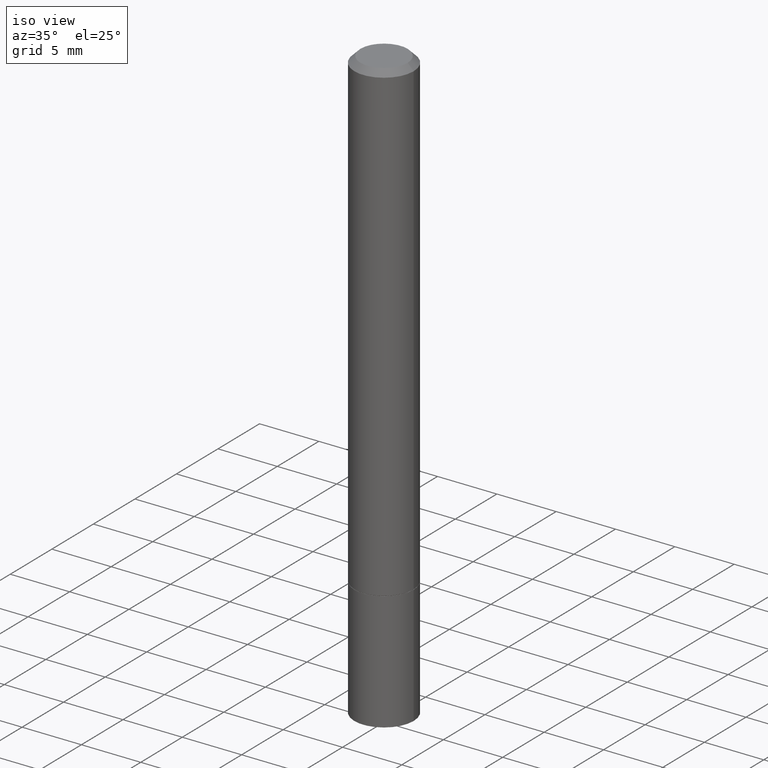
[diagram: clean part render]
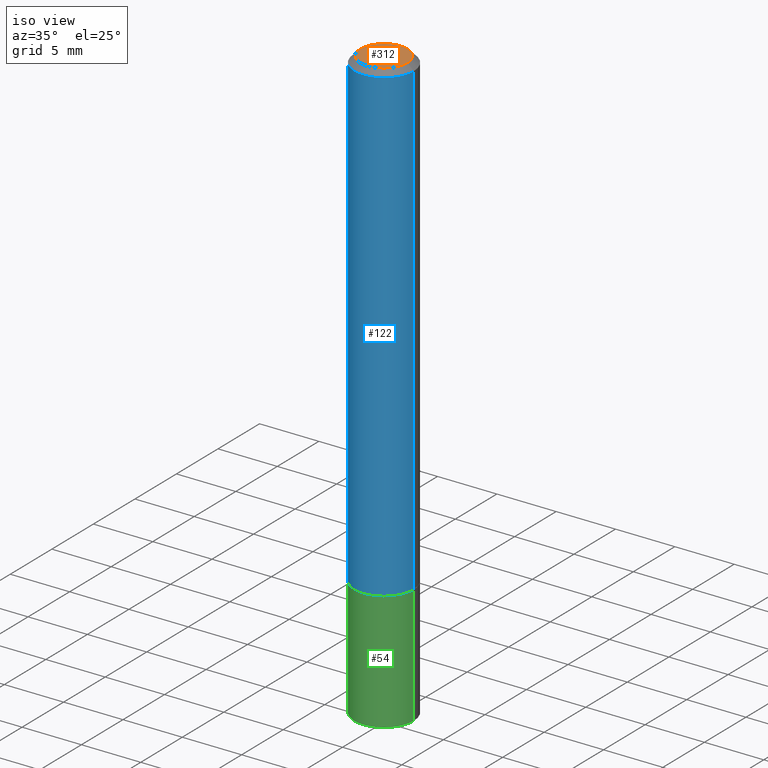
[diagram: same view with three faces highlighted in distinct colors, each labeled with its STEP entity id]
A machine part, iso view with three faces highlighted in distinct colors.
Their STEP definitions:

[orange] entity #312 — the highlighted planar face has unit normal (0, -0, -1).
#11 = FACE_OUTER_BOUND ( 'NONE', #219, .T. ) ;
#14 = DIRECTION ( 'NONE',  ( 2.438088387897960049E-29, -3.491481338843145188E-15, -1.000000000000000000 ) ) ;
#15 = DIRECTION ( 'NONE',  ( 1.000000000000000000, -6.982962677686265922E-15, 4.876176775795935793E-29 ) ) ;
#34 = PLANE ( 'NONE',  #258 ) ;
#45 = CARTESIAN_POINT ( 'NONE',  ( 0.000000000000000000, 0.000000000000000000, 0.000000000000000000 ) ) ;
#103 = CARTESIAN_POINT ( 'NONE',  ( 0.07844999999999981155, -6.417258612913221441E-16, 4.159044147803931210E-30 ) ) ;
#104 = EDGE_CURVE ( 'NONE', #304, #226, #140, .T. ) ;
#140 = CIRCLE ( 'NONE', #221, 0.07844999999999981155 ) ;
#154 = DIRECTION ( 'NONE',  ( -2.445468806185136597E-29, 3.491481338843145583E-15, 1.000000000000000000 ) ) ;
#191 = ORIENTED_EDGE ( 'NONE', *, *, #284, .T. ) ;
#213 = ORIENTED_EDGE ( 'NONE', *, *, #104, .T. ) ;
#219 = EDGE_LOOP ( 'NONE', ( #213, #191 ) ) ;
#221 = AXIS2_PLACEMENT_3D ( 'NONE', #45, #326, #15 ) ;
#224 = CARTESIAN_POINT ( 'NONE',  ( 5.478134220644862595E-16, 0.07844999999999981155, -2.739067110322441158E-16 ) ) ;
#226 = VERTEX_POINT ( 'NONE', #103 ) ;
#231 = DIRECTION ( 'NONE',  ( -1.000000000000000000, 6.982962677686265922E-15, -4.876176775795935793E-29 ) ) ;
#258 = AXIS2_PLACEMENT_3D ( 'NONE', #224, #14, #231 ) ;
#268 = DIRECTION ( 'NONE',  ( 1.000000000000000000, -6.982962677686265922E-15, 4.876176775795935793E-29 ) ) ;
#284 = EDGE_CURVE ( 'NONE', #226, #304, #358, .T. ) ;
#285 = CARTESIAN_POINT ( 'NONE',  ( -0.07844999999999981155, 5.827282354529173170E-16, -3.953055038153090764E-30 ) ) ;
#296 = CARTESIAN_POINT ( 'NONE',  ( 0.000000000000000000, 0.000000000000000000, 0.000000000000000000 ) ) ;
#304 = VERTEX_POINT ( 'NONE', #285 ) ;
#312 = ADVANCED_FACE ( 'NONE', ( #11 ), #34, .F. ) ;
#323 = AXIS2_PLACEMENT_3D ( 'NONE', #296, #154, #268 ) ;
#326 = DIRECTION ( 'NONE',  ( -2.445468806185136597E-29, 3.491481338843145583E-15, 1.000000000000000000 ) ) ;
#358 = CIRCLE ( 'NONE', #323, 0.07844999999999981155 ) ;

[blue] entity #122 — the highlighted cylindrical surface (edge-blend (fillet) strip) has radius 2.5006 mm, axis along (-0, 0, 1).
#10 = EDGE_CURVE ( 'NONE', #318, #146, #68, .T. ) ;
#12 = DIRECTION ( 'NONE',  ( -2.445468806185136877E-29, 3.491481338843145188E-15, 1.000000000000000000 ) ) ;
#17 = LINE ( 'NONE', #150, #271 ) ;
#43 = LINE ( 'NONE', #210, #126 ) ;
#44 = AXIS2_PLACEMENT_3D ( 'NONE', #276, #223, #85 ) ;
#66 = CARTESIAN_POINT ( 'NONE',  ( 4.890937612370278413E-31, -6.982962677686297772E-17, -0.02000000000000002123 ) ) ;
#68 = CIRCLE ( 'NONE', #44, 0.09844999999999999585 ) ;
#85 = DIRECTION ( 'NONE',  ( 1.000000000000000000, -6.982962677686265922E-15, 0.000000000000000000 ) ) ;
#91 = CIRCLE ( 'NONE', #238, 0.09844999999999978768 ) ;
#101 = CARTESIAN_POINT ( 'NONE',  ( 0.09844999999999978768, -7.452456546574688288E-16, -0.02000000000000002123 ) ) ;
#111 = DIRECTION ( 'NONE',  ( 1.000000000000000000, -6.982962677686266711E-15, 0.000000000000000000 ) ) ;
#112 = ORIENTED_EDGE ( 'NONE', *, *, #235, .T. ) ;
#122 = ADVANCED_FACE ( 'NONE', ( #265 ), #356, .T. ) ;
#124 = DIRECTION ( 'NONE',  ( -2.445468806185136877E-29, 3.491481338843145188E-15, 1.000000000000000000 ) ) ;
#125 = AXIS2_PLACEMENT_3D ( 'NONE', #147, #152, #205 ) ;
#126 = VECTOR ( 'NONE', #124, 39.37007874015748143 ) ;
#139 = ORIENTED_EDGE ( 'NONE', *, *, #245, .F. ) ;
#146 = VERTEX_POINT ( 'NONE', #153 ) ;
#147 = CARTESIAN_POINT ( 'NONE',  ( 0.000000000000000000, 0.000000000000000000, 0.000000000000000000 ) ) ;
#150 = CARTESIAN_POINT ( 'NONE',  ( 0.09844999999999988483, -6.874726756182121656E-16, 4.800596035771093609E-30 ) ) ;
#152 = DIRECTION ( 'NONE',  ( -2.445468806185136597E-29, 3.491481338843145583E-15, 1.000000000000000000 ) ) ;
#153 = CARTESIAN_POINT ( 'NONE',  ( 0.09844999999999999585, -6.182366006689555708E-15, -1.573800000000000088 ) ) ;
#170 = CARTESIAN_POINT ( 'NONE',  ( -0.09844999999999999585, -2.082832155568281168E-15, -1.573800000000000088 ) ) ;
#180 = VERTEX_POINT ( 'NONE', #101 ) ;
#182 = CARTESIAN_POINT ( 'NONE',  ( -0.09844999999999978768, 6.176430488413484730E-16, -0.02000000000000002123 ) ) ;
#205 = DIRECTION ( 'NONE',  ( 1.000000000000000000, -6.982962677686266711E-15, 4.876176775795936353E-29 ) ) ;
#210 = CARTESIAN_POINT ( 'NONE',  ( -0.09844999999999988483, 6.995293233558178146E-16, -4.842691596355949137E-30 ) ) ;
#223 = DIRECTION ( 'NONE',  ( -2.445468806185136597E-29, 3.491481338843145583E-15, 1.000000000000000000 ) ) ;
#235 = EDGE_CURVE ( 'NONE', #146, #180, #17, .T. ) ;
#238 = AXIS2_PLACEMENT_3D ( 'NONE', #66, #281, #111 ) ;
#245 = EDGE_CURVE ( 'NONE', #318, #277, #43, .T. ) ;
#265 = FACE_OUTER_BOUND ( 'NONE', #340, .T. ) ;
#269 = ORIENTED_EDGE ( 'NONE', *, *, #333, .F. ) ;
#271 = VECTOR ( 'NONE', #12, 39.37007874015748143 ) ;
#276 = CARTESIAN_POINT ( 'NONE',  ( 3.848678807174168313E-29, -5.494893331071342359E-15, -1.573800000000000088 ) ) ;
#277 = VERTEX_POINT ( 'NONE', #182 ) ;
#281 = DIRECTION ( 'NONE',  ( -2.445468806185136597E-29, 3.491481338843145583E-15, 1.000000000000000000 ) ) ;
#318 = VERTEX_POINT ( 'NONE', #170 ) ;
#333 = EDGE_CURVE ( 'NONE', #277, #180, #91, .T. ) ;
#340 = EDGE_LOOP ( 'NONE', ( #139, #348, #112, #269 ) ) ;
#348 = ORIENTED_EDGE ( 'NONE', *, *, #10, .T. ) ;
#356 = CYLINDRICAL_SURFACE ( 'NONE', #125, 0.09844999999999988483 ) ;

[green] entity #54 — the highlighted cylindrical surface (edge-blend (fillet) strip) has radius 2.5006 mm, axis along (-0, 0, 1).
#54 = ADVANCED_FACE ( 'NONE', ( #118 ), #62, .T. ) ;
#55 = ORIENTED_EDGE ( 'NONE', *, *, #143, .T. ) ;
#62 = CYLINDRICAL_SURFACE ( 'NONE', #273, 0.09844999999999999585 ) ;
#69 = AXIS2_PLACEMENT_3D ( 'NONE', #272, #307, #267 ) ;
#83 = VECTOR ( 'NONE', #196, 39.37007874015748143 ) ;
#87 = VERTEX_POINT ( 'NONE', #175 ) ;
#90 = VERTEX_POINT ( 'NONE', #202 ) ;
#96 = CARTESIAN_POINT ( 'NONE',  ( -0.09844999999999999585, -5.486153590605640426E-15, -1.574800000000000200 ) ) ;
#105 = AXIS2_PLACEMENT_3D ( 'NONE', #178, #207, #352 ) ;
#113 = VECTOR ( 'NONE', #259, 39.37007874015748143 ) ;
#116 = ORIENTED_EDGE ( 'NONE', *, *, #183, .T. ) ;
#118 = FACE_OUTER_BOUND ( 'NONE', #342, .T. ) ;
#123 = CARTESIAN_POINT ( 'NONE',  ( 0.09844999999999999585, -6.874726756182129545E-16, 4.800596035771099214E-30 ) ) ;
#128 = CARTESIAN_POINT ( 'NONE',  ( 0.09844999999999999585, -7.560453691130944267E-15, -1.968500000000000139 ) ) ;
#143 = EDGE_CURVE ( 'NONE', #249, #87, #327, .T. ) ;
#172 = CARTESIAN_POINT ( 'NONE',  ( 0.000000000000000000, 0.000000000000000000, 0.000000000000000000 ) ) ;
#175 = CARTESIAN_POINT ( 'NONE',  ( 0.09844999999999999585, -6.185857488028398715E-15, -1.574800000000000200 ) ) ;
#178 = CARTESIAN_POINT ( 'NONE',  ( 4.813905344975441835E-29, -6.872981015512731707E-15, -1.968500000000000139 ) ) ;
#183 = EDGE_CURVE ( 'NONE', #90, #249, #211, .T. ) ;
#185 = ORIENTED_EDGE ( 'NONE', *, *, #315, .F. ) ;
#196 = DIRECTION ( 'NONE',  ( -2.445468806185136877E-29, 3.491481338843145188E-15, 1.000000000000000000 ) ) ;
#198 = VERTEX_POINT ( 'NONE', #96 ) ;
#202 = CARTESIAN_POINT ( 'NONE',  ( -0.09844999999999999585, -5.486153590605640426E-15, -1.968500000000000139 ) ) ;
#207 = DIRECTION ( 'NONE',  ( -2.445468806185136597E-29, 3.491481338843145583E-15, 1.000000000000000000 ) ) ;
#211 = CIRCLE ( 'NONE', #105, 0.09844999999999999585 ) ;
#222 = CIRCLE ( 'NONE', #69, 0.09844999999999999585 ) ;
#248 = ORIENTED_EDGE ( 'NONE', *, *, #278, .F. ) ;
#249 = VERTEX_POINT ( 'NONE', #128 ) ;
#256 = DIRECTION ( 'NONE',  ( 1.000000000000000000, -6.982962677686266711E-15, 4.876176775795936353E-29 ) ) ;
#259 = DIRECTION ( 'NONE',  ( -2.445468806185136877E-29, 3.491481338843145188E-15, 1.000000000000000000 ) ) ;
#260 = LINE ( 'NONE', #321, #83 ) ;
#267 = DIRECTION ( 'NONE',  ( 1.000000000000000000, -6.982962677686265922E-15, 0.000000000000000000 ) ) ;
#272 = CARTESIAN_POINT ( 'NONE',  ( 3.851124275980353356E-29, -5.498384812410186155E-15, -1.574800000000000200 ) ) ;
#273 = AXIS2_PLACEMENT_3D ( 'NONE', #172, #286, #256 ) ;
#278 = EDGE_CURVE ( 'NONE', #198, #87, #222, .T. ) ;
#286 = DIRECTION ( 'NONE',  ( -2.445468806185136597E-29, 3.491481338843145583E-15, 1.000000000000000000 ) ) ;
#307 = DIRECTION ( 'NONE',  ( -2.445468806185136597E-29, 3.491481338843145583E-15, 1.000000000000000000 ) ) ;
#315 = EDGE_CURVE ( 'NONE', #90, #198, #260, .T. ) ;
#321 = CARTESIAN_POINT ( 'NONE',  ( -0.09844999999999999585, 6.995293233558186035E-16, -4.842691596355954042E-30 ) ) ;
#327 = LINE ( 'NONE', #123, #113 ) ;
#342 = EDGE_LOOP ( 'NONE', ( #185, #116, #55, #248 ) ) ;
#352 = DIRECTION ( 'NONE',  ( 1.000000000000000000, -6.982962677686265922E-15, 0.000000000000000000 ) ) ;